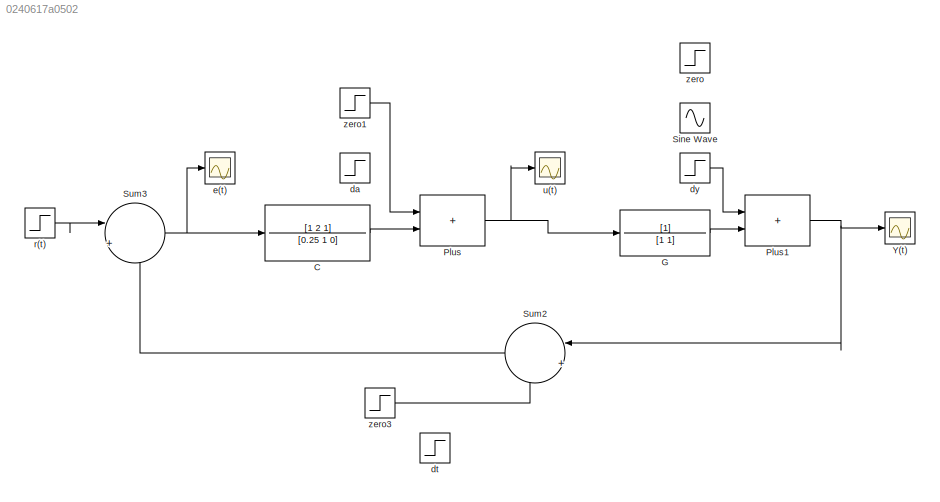
MODEL slx_0240617a0502
KIND model
CONFIG AbsTol = auto
CONFIG EnableMultiTasking = off
CONFIG FixedStep = auto
CONFIG MaxStep = auto
CONFIG MinStep = auto
CONFIG RelTol = 1e-3
CONFIG SampleTimeConstraint = Unconstrained
CONFIG SolverName = VariableStepAuto
CONFIG StartTime = 0.0
CONFIG StopTime = 10
BLOCK [TransferFcn]  G
BLOCK [TransferFcn] C
  Denominator = [0.25 1 0]
  Numerator = [1 2 1]
BLOCK [Sum] Plus
  IconShape = rectangular
BLOCK [Sum] Plus1
  IconShape = rectangular
BLOCK [Sin] Sine Wave
  Amplitude = 0.5
  SampleTime = 0
BLOCK [Sum] Sum2
  Inputs = |++
BLOCK [Sum] Sum3
  Inputs = |+-
BLOCK [Scope] Y(t)
  Floating = off
  NumInputPorts = 1
  ScopeSpecificationString = Simulink.scopes.TimeScopeBlockCfg('CurrentConfiguration', extmgr.ConfigurationSet(extmgr.Configuration('Core','General UI',true),extmgr.Configuration('Core','Source UI',true),extmgr.Configuration('Sources','WiredSimulink',true),extmgr.Configuration('Visuals','Time Domain',true,'SerializedDisplays',{struct('MinYLimReal','1.875','MaxYLimReal','3.125','YLabelReal','','MinYLimMag','1.875','MaxYLimMag'...<+1424ch>
BLOCK [Step] da
  After = 0
  SampleTime = 0
  Time = 0
BLOCK [Step] dt
  After = 0
  SampleTime = 0
  Time = 0
BLOCK [Step] dy
  After = 2
  SampleTime = 0
  Time = 0
BLOCK [Scope] e(t)
  Floating = off
  NumInputPorts = 1
  ScopeSpecificationString = Simulink.scopes.TimeScopeBlockCfg('CurrentConfiguration', extmgr.ConfigurationSet(extmgr.Configuration('Core','General UI',true),extmgr.Configuration('Core','Source UI',true),extmgr.Configuration('Sources','WiredSimulink',true,'DataLoggingVariableName','ScopeData2'),extmgr.Configuration('Visuals','Time Domain',true,'SerializedDisplays',{struct('MinYLimReal','-0.125','MaxYLimReal','1.125','YLabelRe...<+1494ch>
BLOCK [Step] r(t)
  After = 3
  SampleTime = 0
  Time = 0
BLOCK [Scope] u(t)
  Floating = off
  NumInputPorts = 1
  ScopeSpecificationString = Simulink.scopes.TimeScopeBlockCfg('CurrentConfiguration', extmgr.ConfigurationSet(extmgr.Configuration('Core','General UI',true),extmgr.Configuration('Core','Source UI',true),extmgr.Configuration('Sources','WiredSimulink',true,'DataLoggingVariableName','ScopeData1'),extmgr.Configuration('Visuals','Time Domain',true,'SerializedDisplays',{struct('MinYLimReal','0.60473','MaxYLimReal','4.37725','YLabe...<+1478ch>
BLOCK [Step] zero
  After = 0
  SampleTime = 0
  Time = 0
BLOCK [Step] zero1
  After = 0
  SampleTime = 0
  Time = 0
BLOCK [Step] zero3
  After = 0
  SampleTime = 0
  Time = 0
LINE  G:1 -> Plus1:2
LINE C:1 -> Plus:2
NET Plus1:1 -> Sum2:1, Y(t):1
NET Plus:1 ->  G:1, u(t):1
LINE Sum2:1 -> Sum3:2
NET Sum3:1 -> C:1, e(t):1
LINE dy:1 -> Plus1:1
LINE r(t):1 -> Sum3:1
LINE zero1:1 -> Plus:1
LINE zero3:1 -> Sum2:2
note: NET lines group one-source signal fan-out (src -> all destinations, sorted); 1:1 wires keep LINE
